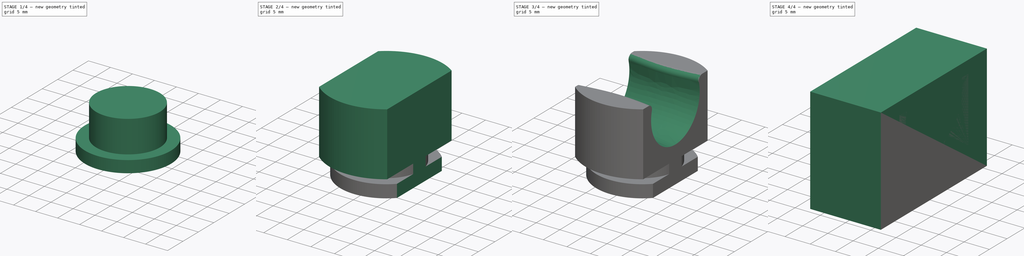
[diagram: build sequence overview — one tinted view per stage of 4, left to right]
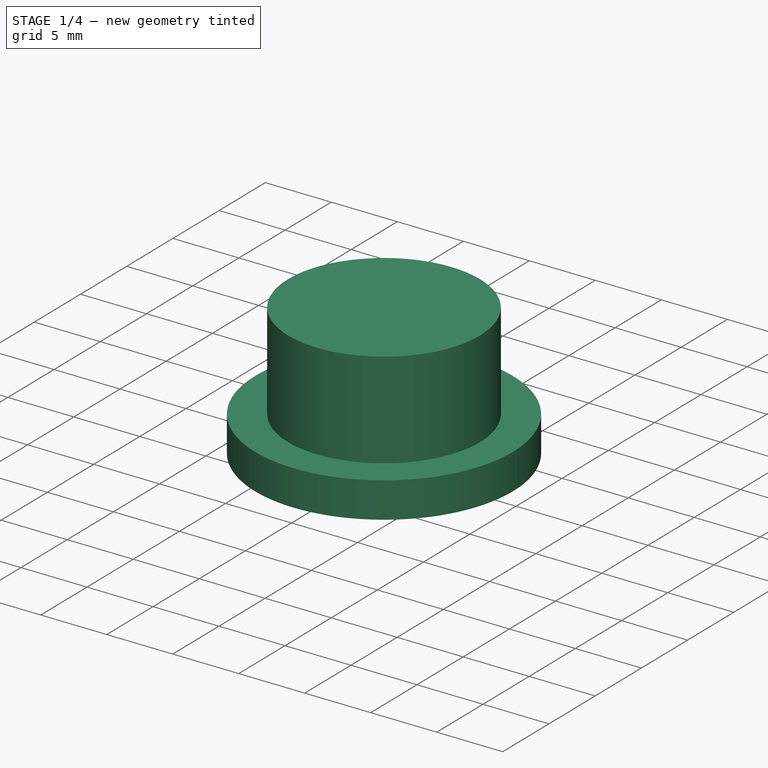
[diagram: stage 1 of 4 — iso view after this stage's code; geometry added in this stage tinted green]
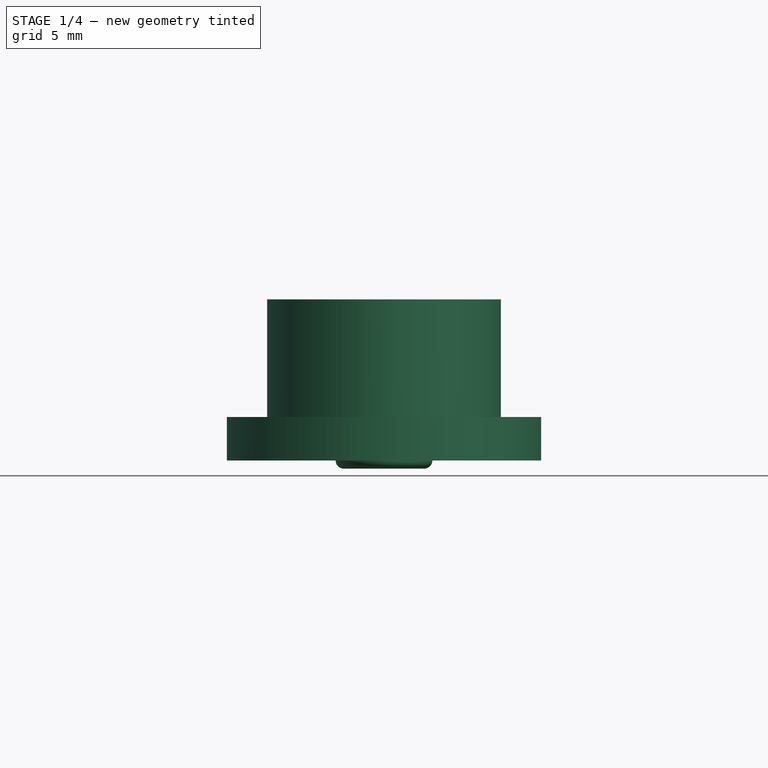
[diagram: stage 1 of 4 — front view after this stage's code; geometry added in this stage tinted green]
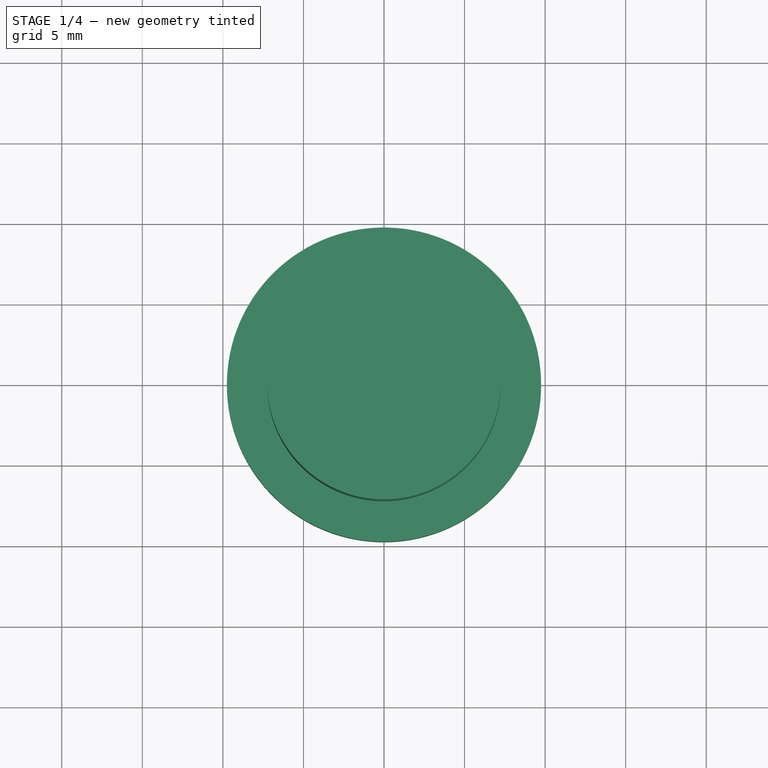
[diagram: stage 1 of 4 — top view after this stage's code; geometry added in this stage tinted green]
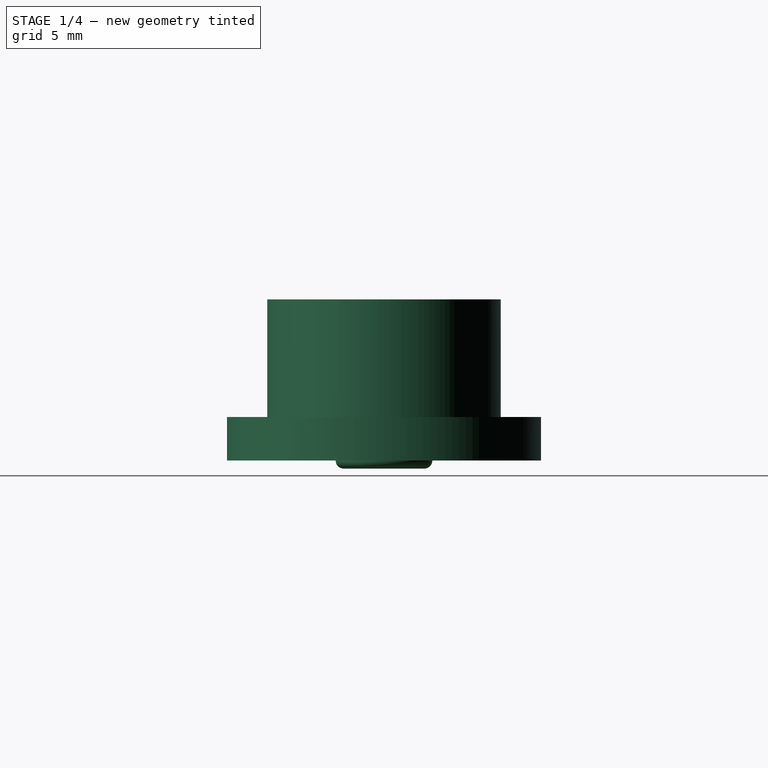
[diagram: stage 1 of 4 — right view after this stage's code; geometry added in this stage tinted green]
FCSTD DOCUMENT  (FreeCAD 0.16R6712 (Git))
Label: soporteCasco16
License: CreativeCommons Attribution-ShareAlike
LicenseURL: http://creativecommons.org/licenses/by-sa/4.0/
objects: Sketcher::SketchObject×6, Part::Cylinder×4, PartDesign::Fillet×3, Part::MultiFuse×2, Part::Loft×1, Part::Box×1, PartDesign::Pocket×1, Part::Cut×1, PartDesign::Chamfer×1
note: 21 computed .brp shape members not serialized (recipe doc carries the construction recipe); baked Part::Feature solids carry a one-line shape summary decoded from their .brp

FEATURE [Part::Cylinder] Cylinder001  label="Cilindro001"
  Angle = 360
  Height = 10
  Radius = 7.25
FEATURE [Part::Cylinder] Cylinder002  label="Cilindro002"
  Angle = 360
  Height = 2.7
  Radius = 9.75
FEATURE [Part::Cylinder] Cylinder003  label="Cilindro003"
  Angle = 360
  Height = 2
  Placement = pos=(0,0,-0.5) rot=(0,0,1;0rad)
  Radius = 3
FEATURE [PartDesign::Fillet] Fillet002
  Base = -> Cylinder003 [Edge3]
  Placement = pos=(0,0,-0.5) rot=(0,0,1;0rad)
  Radius = 0.5
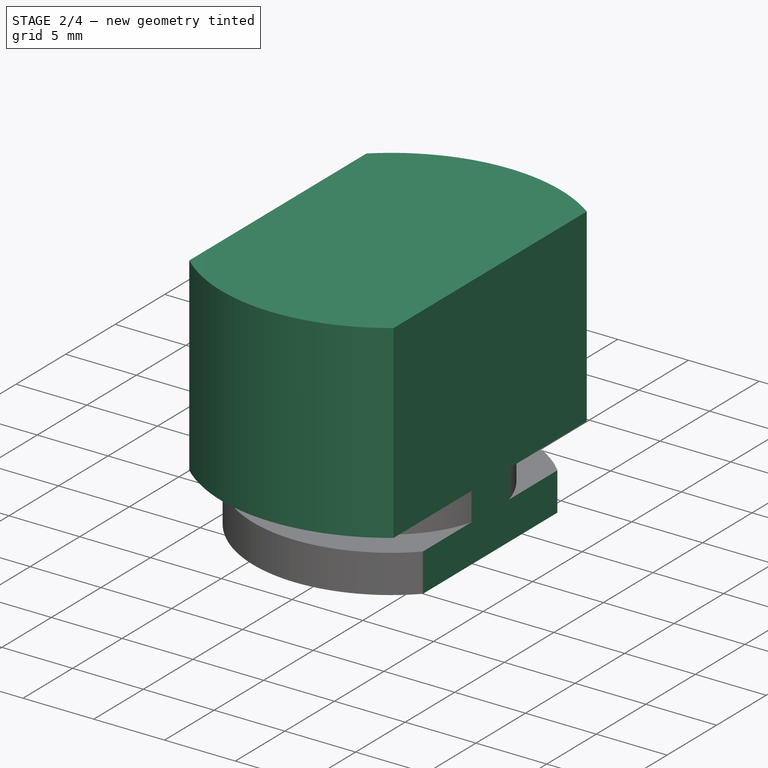
[diagram: stage 2 of 4 — iso view after this stage's code; geometry added in this stage tinted green]
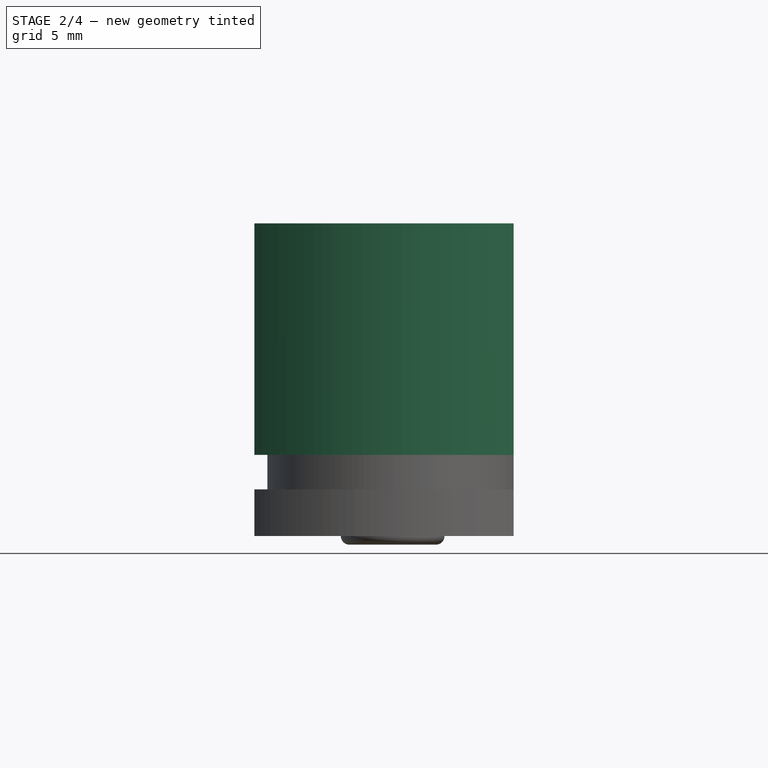
[diagram: stage 2 of 4 — front view after this stage's code; geometry added in this stage tinted green]
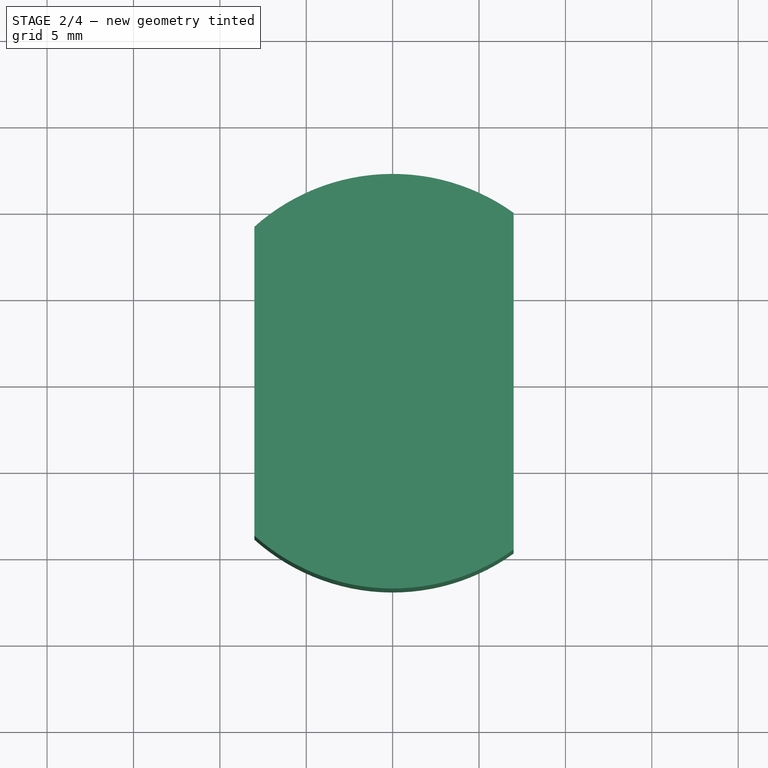
[diagram: stage 2 of 4 — top view after this stage's code; geometry added in this stage tinted green]
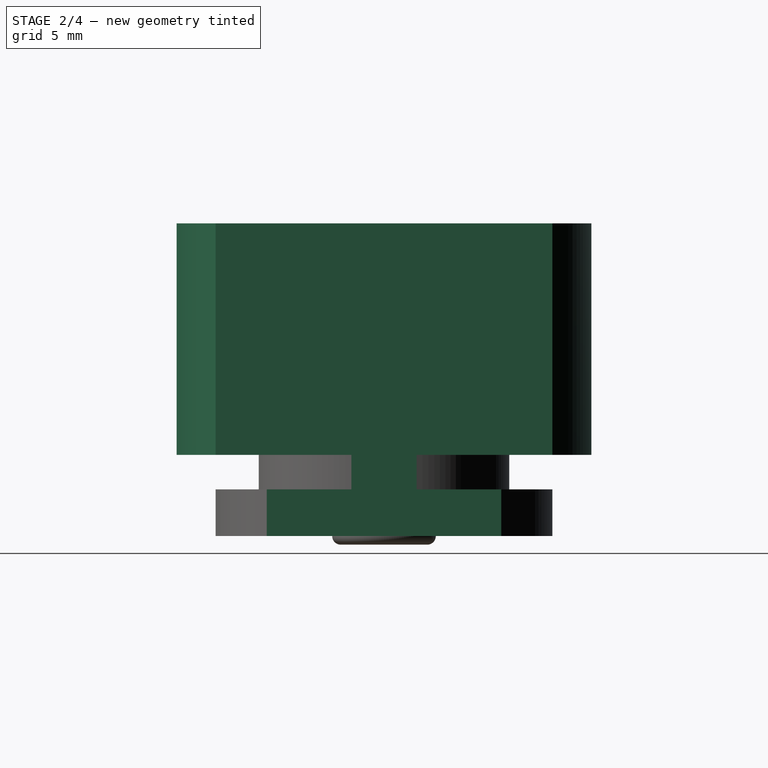
[diagram: stage 2 of 4 — right view after this stage's code; geometry added in this stage tinted green]
FEATURE [Part::Cylinder] Cylinder  label="Cilindro"
  Angle = 360
  Height = 13.4
  Placement = pos=(0,0,4.7) rot=(0,0,1;0rad)
  Radius = 12
FEATURE [Part::MultiFuse] Fusion
  Shapes = -> [Cylinder,Cylinder001,Cylinder002]
FEATURE [Sketcher::SketchObject] Sketch
  Placement = pos=(0,0,0) rot=(1,0,0;3.14159rad)
  Support = -> Fusion [Face7]
  sketch-geometry (8):
    g0: LineSegment StartX=7 StartY=15 StartZ=0 EndX=17 EndY=15 EndZ=0
    g1: LineSegment StartX=17 StartY=15 StartZ=0 EndX=17 EndY=-15 EndZ=0
    g2: LineSegment StartX=17 StartY=-15 StartZ=0 EndX=7 EndY=-15 EndZ=0
    g3: LineSegment StartX=7 StartY=-15 StartZ=0 EndX=7 EndY=15 EndZ=0
    g4: LineSegment StartX=-18 StartY=15 StartZ=0 EndX=-8 EndY=15 EndZ=0
    g5: LineSegment StartX=-8 StartY=15 StartZ=0 EndX=-8 EndY=-15 EndZ=0
    g6: LineSegment StartX=-8 StartY=-15 StartZ=0 EndX=-18 EndY=-15 EndZ=0
    g7: LineSegment StartX=-18 StartY=-15 StartZ=0 EndX=-18 EndY=15 EndZ=0
  constraints (24):
    c: Coincident(g0,g1)
    c: Coincident(g1,g2)
    c: Coincident(g2,g3)
    c: Coincident(g3,g0)
    c: Horizontal(g0)
    c: Horizontal(g2)
    c: Vertical(g1)
    c: Vertical(g3)
    c: Coincident(g4,g5)
    c: Coincident(g5,g6)
    c: Coincident(g6,g7)
    c: Coincident(g7,g4)
    c: Horizontal(g4)
    c: Horizontal(g6)
    c: Vertical(g5)
    c: Vertical(g7)
    c: Equal(g6,g2)
    c: Equal(g5,g3)
    c: DistanceY(g1,g1) = 30
    c: DistanceX(g0,g0) = 10
    c: Symmetric(g1,g0,g-1)
    c: Symmetric(g6,g4,g-1)
    c: DistanceX(g-1,g2) = 7
    c: DistanceX(g4,g-1) = 8
FEATURE [PartDesign::Pocket] Pocket
  Length = 5
  Sketch = -> Sketch
  Type = 1
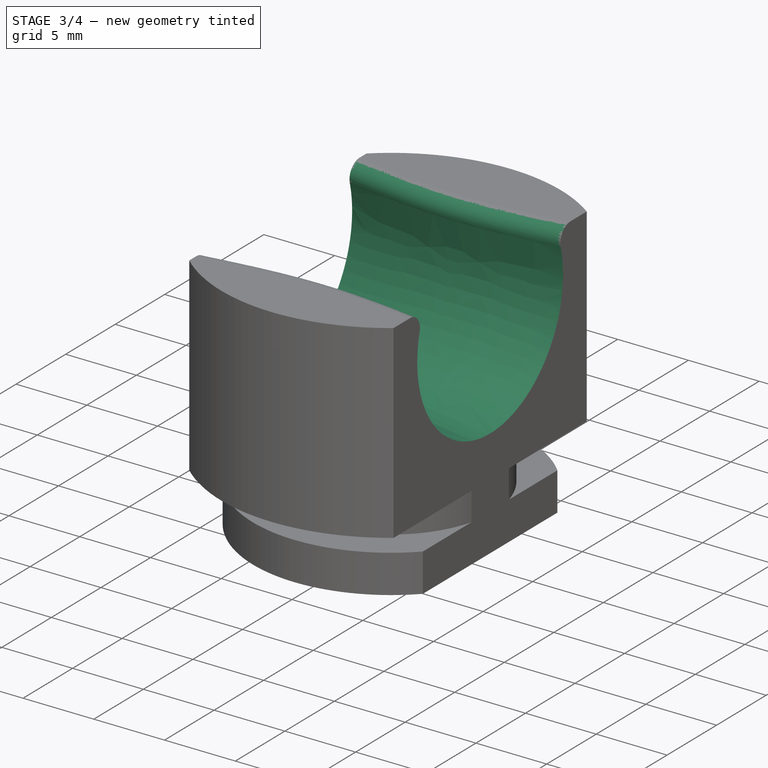
[diagram: stage 3 of 4 — iso view after this stage's code; geometry added in this stage tinted green]
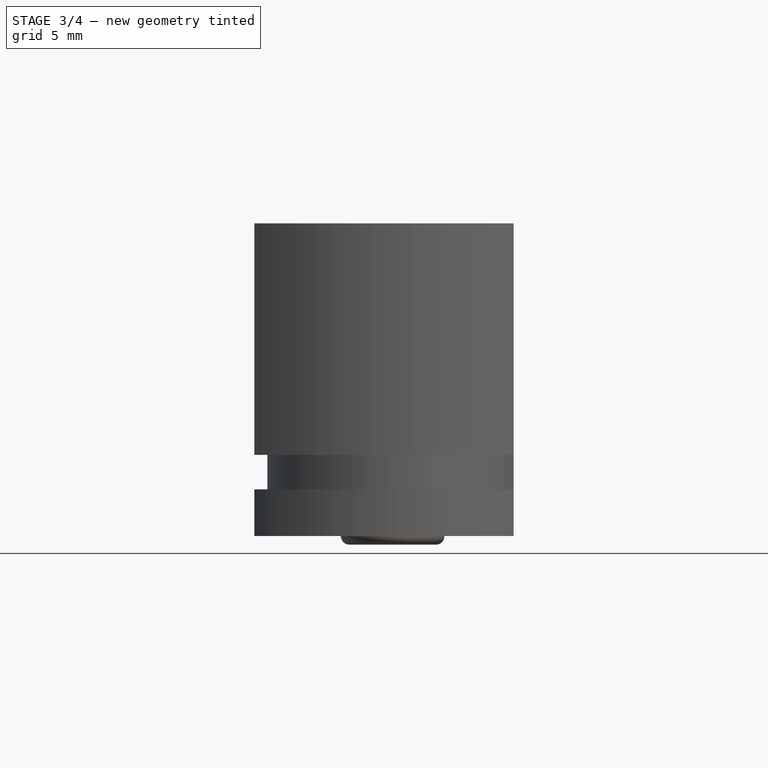
[diagram: stage 3 of 4 — front view after this stage's code; geometry added in this stage tinted green]
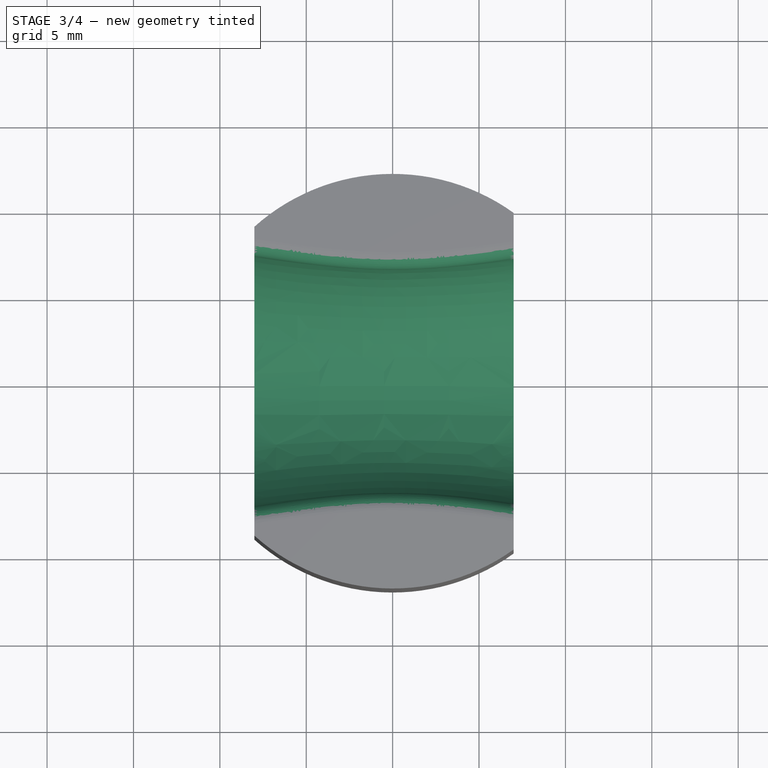
[diagram: stage 3 of 4 — top view after this stage's code; geometry added in this stage tinted green]
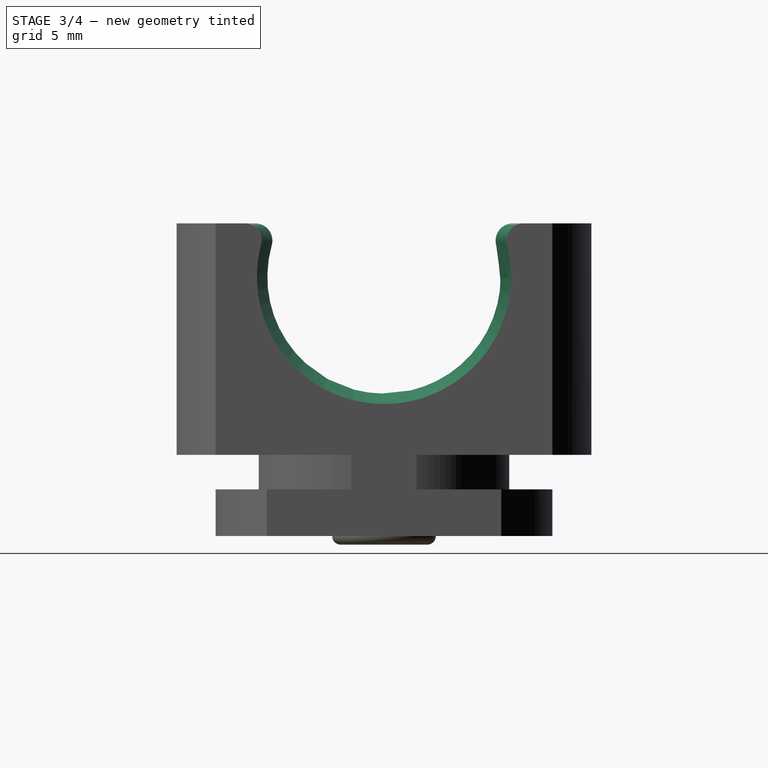
[diagram: stage 3 of 4 — right view after this stage's code; geometry added in this stage tinted green]
FEATURE [Sketcher::SketchObject] Sketch011  label="centro001"
  Placement = pos=(0,0,0) rot=(0.57735,0.57735,0.57735;2.0944rad)
  sketch-geometry (1):
    g0: Circle CenterX=0 CenterY=15 CenterZ=0 NormalX=0 NormalY=0 NormalZ=1 Radius=6.75
  constraints (3):
    c: PointOnObject(g0,g-2)
    c: Radius(g0) = 6.75
    c: DistanceY(g-1,g0) = 15
FEATURE [Sketcher::SketchObject] Sketch012  label="fuera003"
  Placement = pos=(10,0,0) rot=(0.57735,0.57735,0.57735;2.0944rad)
  sketch-geometry (1):
    g0: Circle CenterX=0 CenterY=15 CenterZ=0 NormalX=0 NormalY=0 NormalZ=1 Radius=7.75
  constraints (3):
    c: PointOnObject(g0,g-2)
    c: DistanceY(g-1,g0) = 15
    c: Radius(g0) = 7.75
FEATURE [Sketcher::SketchObject] Sketch013  label="fuera004"
  Placement = pos=(-10,0,0) rot=(0.57735,0.57735,0.57735;2.0944rad)
  sketch-geometry (1):
    g0: Circle CenterX=0 CenterY=15 CenterZ=0 NormalX=0 NormalY=0 NormalZ=1 Radius=7.75
  constraints (3):
    c: PointOnObject(g0,g-2)
    c: DistanceY(g-1,g0) = 15
    c: Radius(g0) = 7.75
FEATURE [Sketcher::SketchObject] Sketch014  label="fuera1_003"
  Placement = pos=(15,0,0) rot=(0.57735,0.57735,0.57735;2.0944rad)
  sketch-geometry (1):
    g0: Circle CenterX=0 CenterY=15 CenterZ=0 NormalX=0 NormalY=0 NormalZ=1 Radius=7.75
  constraints (3):
    c: PointOnObject(g0,g-2)
    c: DistanceY(g-1,g0) = 15
    c: Radius(g0) = 7.75
FEATURE [Sketcher::SketchObject] Sketch015  label="fuera2_003"
  Placement = pos=(-15,0,0) rot=(0.57735,0.57735,0.57735;2.0944rad)
  sketch-geometry (1):
    g0: Circle CenterX=0 CenterY=15 CenterZ=0 NormalX=0 NormalY=0 NormalZ=1 Radius=7.75
  constraints (3):
    c: PointOnObject(g0,g-2)
    c: DistanceY(g-1,g0) = 15
    c: Radius(g0) = 7.75
FEATURE [Part::Loft] Loft002
  Closed = false
  Ruled = false
  Sections = -> [Sketch015,Sketch013,Sketch011,Sketch012,Sketch014]
  Solid = true
FEATURE [Part::Cut] Cut
  Base = -> Pocket
  Tool = -> Loft002
FEATURE [PartDesign::Fillet] Fillet
  Base = -> Cut [Edge32,Edge33]
  Radius = 1
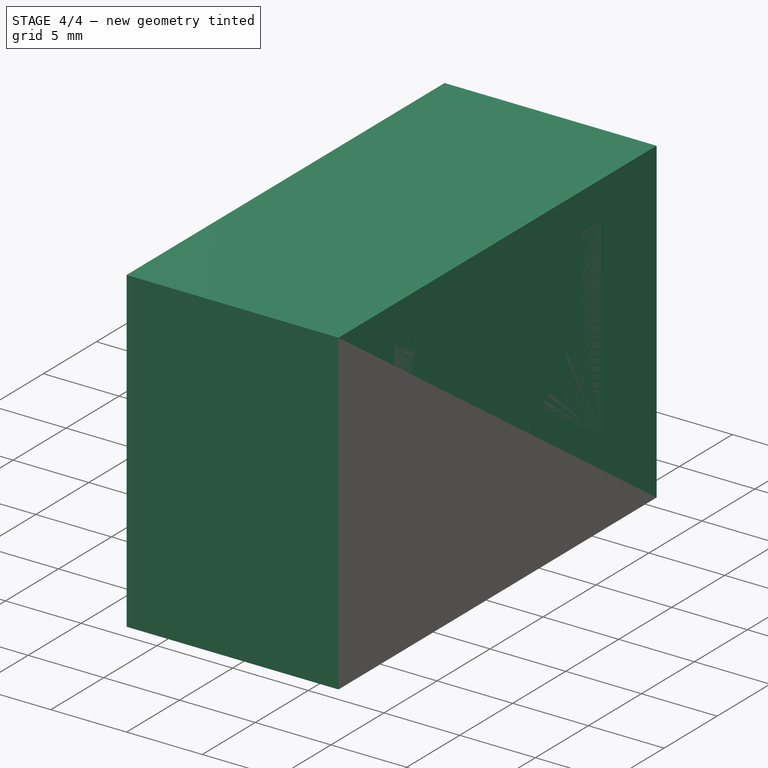
[diagram: stage 4 of 4 — iso view after this stage's code; geometry added in this stage tinted green]
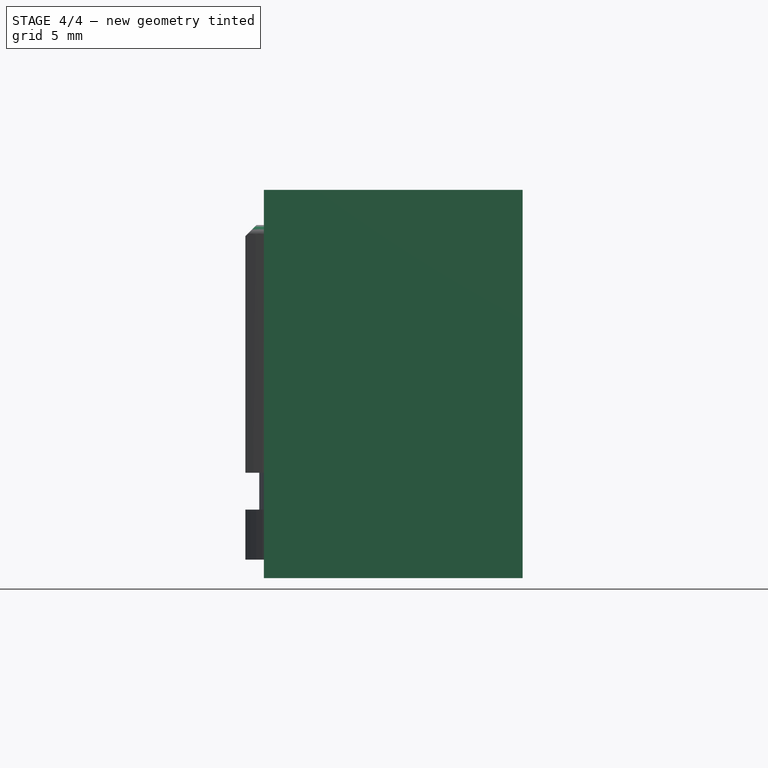
[diagram: stage 4 of 4 — front view after this stage's code; geometry added in this stage tinted green]
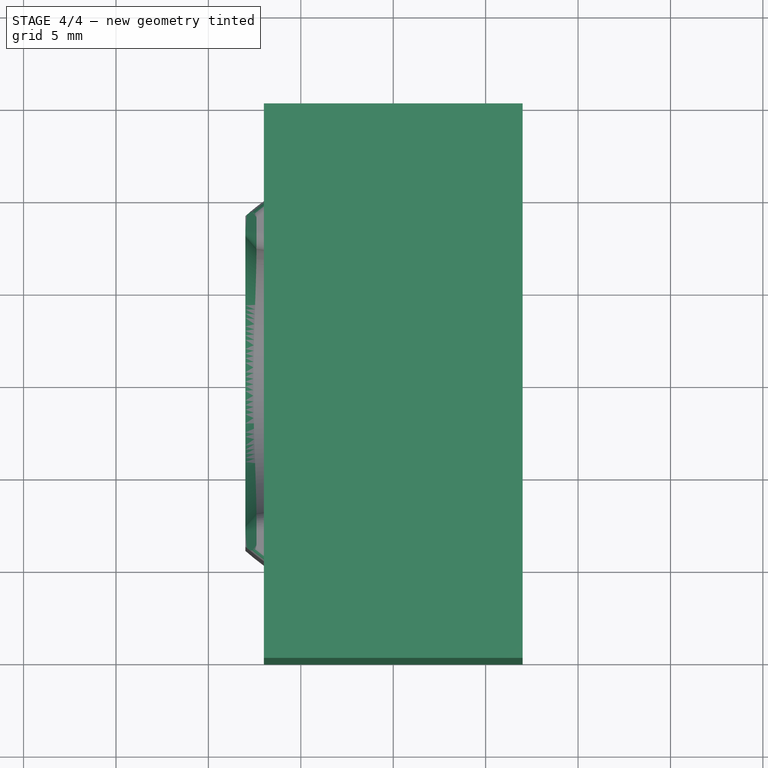
[diagram: stage 4 of 4 — top view after this stage's code; geometry added in this stage tinted green]
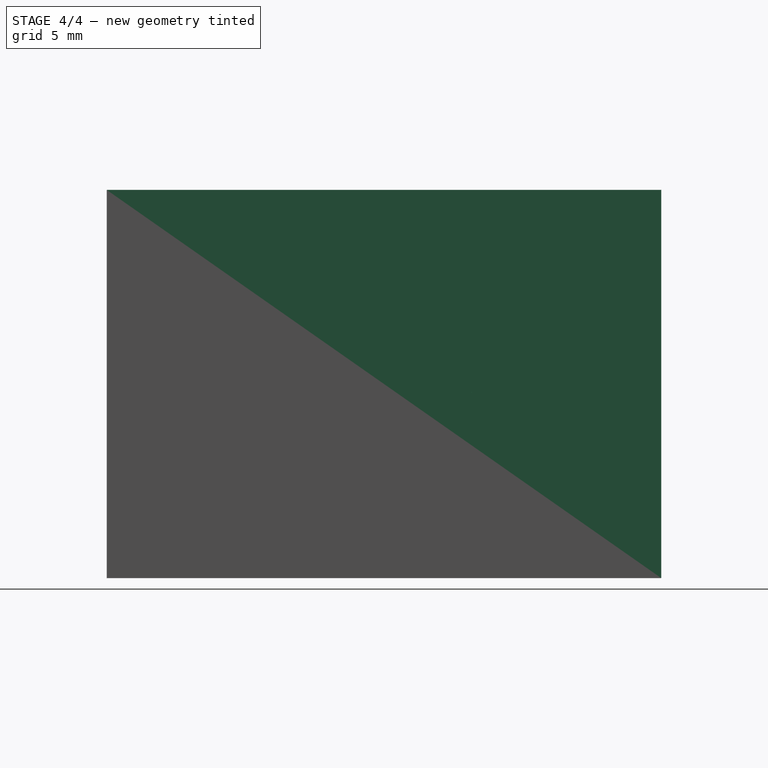
[diagram: stage 4 of 4 — right view after this stage's code; geometry added in this stage tinted green]
FEATURE [Part::Box] Box  label="Cubo"
  Height = 21
  Length = 14
  Placement = pos=(-7,-15,-1) rot=(0,0,1;0rad)
  Width = 30
FEATURE [PartDesign::Chamfer] Chamfer
  Base = -> Fillet [Edge27,Edge4]
  Size = 0.6
FEATURE [PartDesign::Fillet] Fillet001
  Base = -> Chamfer [Edge19,Edge43]
  Radius = 0.5
FEATURE [Part::MultiFuse] Fusion001
  Shapes = -> [Fillet002,Fillet001]
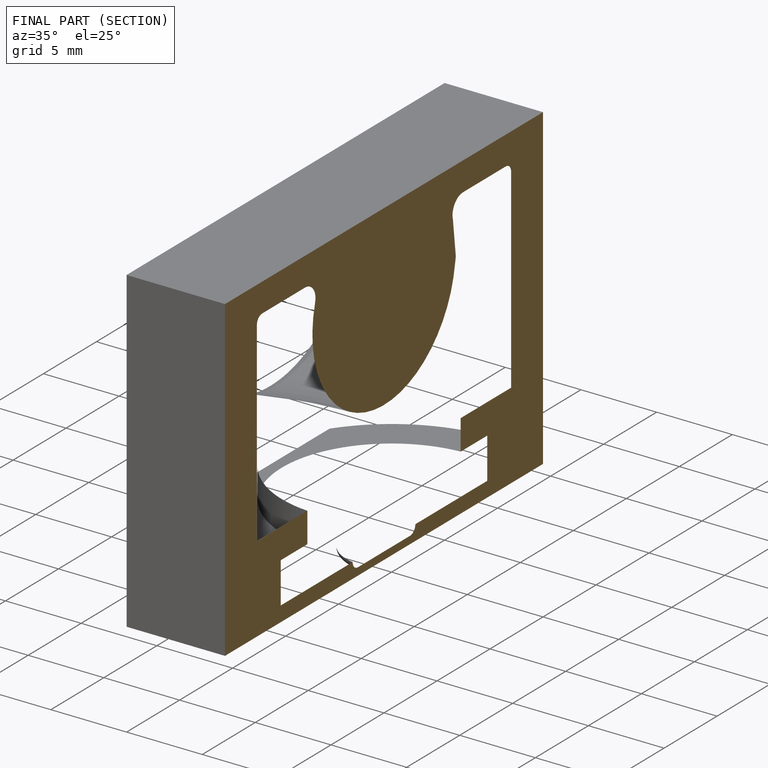
[diagram: finished part — half-section view (interior)]
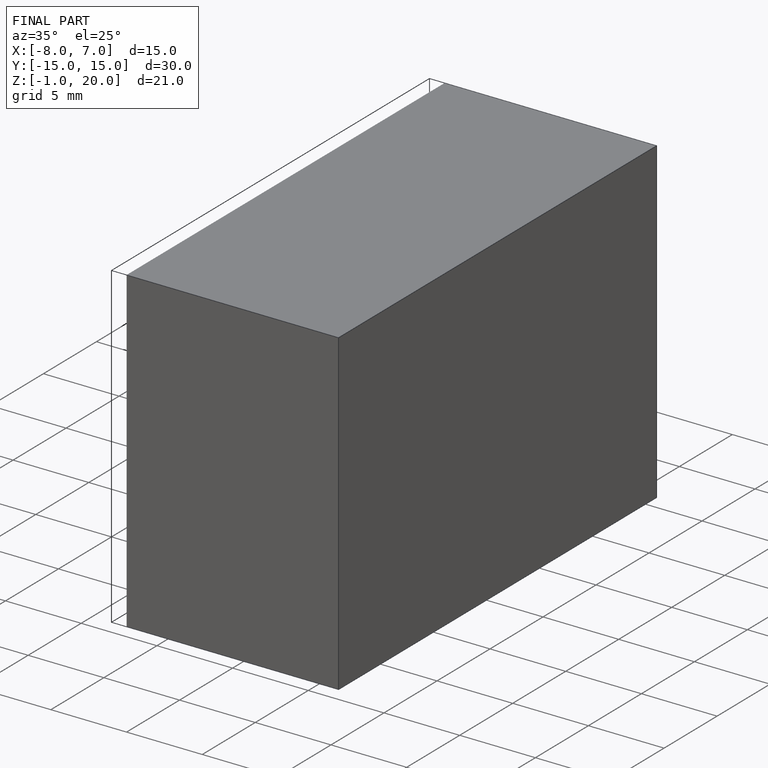
[diagram: finished part — iso view with bounding-box wireframe]
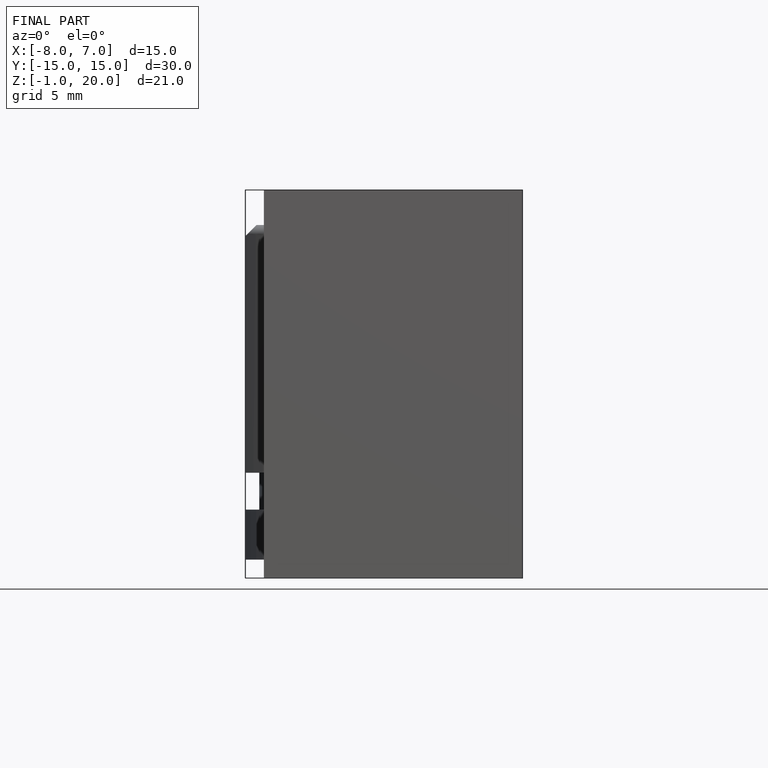
[diagram: finished part — front view with bounding-box wireframe]
